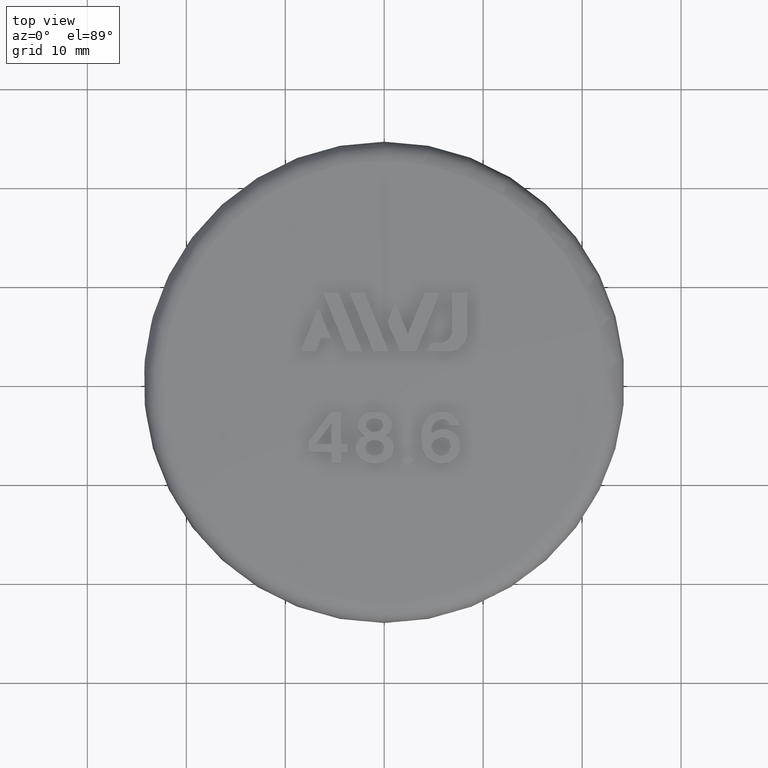
[diagram: clean part render]
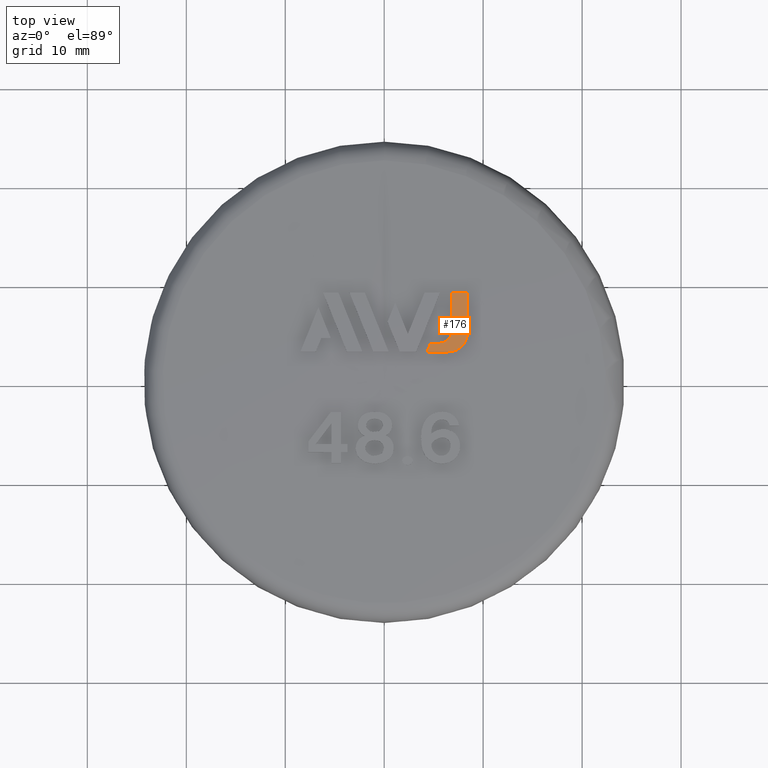
[diagram: same view with one face highlighted and labeled with its STEP entity id]
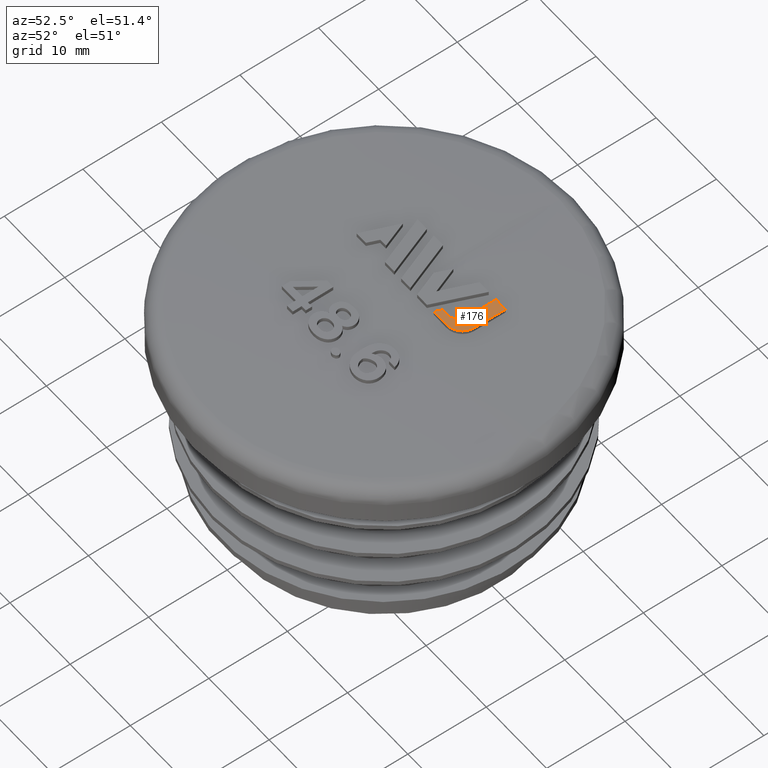
[diagram: same view with one face highlighted and labeled with its STEP entity id]
A machine part, top view. The second image highlights one B-rep face of the part: STEP entity #176.
A second angle (auxiliary view) of the same face is appended — the face is thin or edge-on in the first view.
In plain terms, the highlighted face is a freeform B-spline surface patch.
Its self-contained STEP definition (entity closure, byte-faithful):
#176 = ADVANCED_FACE( '', ( #431 ), #432, .T. );
#431 = FACE_OUTER_BOUND( '', #1050, .T. );
#432 = ( B_SPLINE_SURFACE( 3, 3, ( ( #1052, #1053, #1054, #1055 ), ( #1056, #1057, #1058, #1059 ), ( #1060, #1061, #1062, #1063 ), ( #1064, #1065, #1066, #1067 ) ), .UNSPECIFIED., .F., .F., .F. )B_SPLINE_SURFACE_WITH_KNOTS( ( 4, 4 ), ( 4, 4 ), ( 1.97843292187817, 2.49331854874179 ), ( 1.54983829835444, 1.56283366272915 ), .UNSPECIFIED. )RATIONAL_B_SPLINE_SURFACE( ( ( 1.00000000000000, 0.978029480429201, 0.978029480429201, 1.00000000000000 ), ( 0.999985926758245, 0.978015716383880, 0.978015716383880, 0.999985926758245 ), ( 0.999985926758245, 0.978015716383880, 0.978015716383880, 0.999985926758245 ), ( 1.00000000000000, 0.978029480429201, 0.978029480429201, 1.00000000000000 ) ) )BOUNDED_SURFACE(  )REPRESENTATION_ITEM( '' )GEOMETRIC_REPRESENTATION_ITEM(  )SURFACE(  ) );
#1050 = EDGE_LOOP( '', ( #2065, #2066, #2067, #2068, #2069, #2070, #2071, #2072 ) );
#1052 = CARTESIAN_POINT( '', ( 4.79382188161657, 2.07008839726422, 27.4831869739101 ) );
#1053 = CARTESIAN_POINT( '', ( 4.43455387754290, 2.90206582468672, 27.4831869739101 ) );
#1054 = CARTESIAN_POINT( '', ( 3.87529732687413, 3.61515210910518, 27.4831869739101 ) );
#1055 = CARTESIAN_POINT( '', ( 3.15291370058495, 4.16234662201713, 27.4831869739101 ) );
#1056 = CARTESIAN_POINT( '', ( 6.98301987771065, 3.01543711545652, 27.4641988791607 ) );
#1057 = CARTESIAN_POINT( '', ( 6.45968470259858, 4.22735425734640, 27.4641988791607 ) );
#1058 = CARTESIAN_POINT( '', ( 5.64503207125322, 5.26608615468960, 27.4641988791607 ) );
#1059 = CARTESIAN_POINT( '', ( 4.59275700841569, 6.06316836904793, 27.4641988791607 ) );
#1060 = CARTESIAN_POINT( '', ( 9.17205839192923, 3.96071696551225, 27.4297169827698 ) );
#1061 = CARTESIAN_POINT( '', ( 8.48466799798236, 5.55254614346932, 27.4297169827698 ) );
#1062 = CARTESIAN_POINT( '', ( 7.41463789142506, 6.91689993063263, 27.4297169827698 ) );
#1063 = CARTESIAN_POINT( '', ( 6.03249542444971, 7.96385164225510, 27.4297169827698 ) );
#1064 = CARTESIAN_POINT( '', ( 11.3608450036676, 4.90588803797584, 27.3797427405535 ) );
#1065 = CARTESIAN_POINT( '', ( 10.5094182694558, 6.87758553381811, 27.3797427405535 ) );
#1066 = CARTESIAN_POINT( '', ( 9.18404007511808, 8.56752374003019, 27.3797427405535 ) );
#1067 = CARTESIAN_POINT( '', ( 7.47206816332665, 9.86431619531302, 27.3797427405535 ) );
#2065 = ORIENTED_EDGE( '', *, *, #2554, .T. );
#2066 = ORIENTED_EDGE( '', *, *, #2555, .T. );
#2067 = ORIENTED_EDGE( '', *, *, #2556, .T. );
#2068 = ORIENTED_EDGE( '', *, *, #2557, .T. );
#2069 = ORIENTED_EDGE( '', *, *, #2558, .T. );
#2070 = ORIENTED_EDGE( '', *, *, #2559, .T. );
#2071 = ORIENTED_EDGE( '', *, *, #2560, .T. );
#2072 = ORIENTED_EDGE( '', *, *, #2561, .T. );
#2554 = EDGE_CURVE( '', #3068, #3069, #3070, .T. );
#2555 = EDGE_CURVE( '', #3069, #3071, #3072, .T. );
#2556 = EDGE_CURVE( '', #3071, #3073, #3074, .T. );
#2557 = EDGE_CURVE( '', #3073, #3075, #3076, .T. );
#2558 = EDGE_CURVE( '', #3075, #3077, #3078, .T. );
#2559 = EDGE_CURVE( '', #3077, #3079, #3080, .T. );
#2560 = EDGE_CURVE( '', #3079, #3081, #3082, .T. );
#2561 = EDGE_CURVE( '', #3081, #3068, #3083, .T. );
#3068 = VERTEX_POINT( '', #4848 );
#3069 = VERTEX_POINT( '', #4849 );
#3070 = B_SPLINE_CURVE_WITH_KNOTS( '', 3, ( #4850, #4851, #4852, #4853, #4854, #4855 ), .UNSPECIFIED., .F., .F., ( 4, 2, 4 ), ( 3.49258389821311, 3.49300991663693, 3.49343593506075 ), .UNSPECIFIED. );
#3071 = VERTEX_POINT( '', #4856 );
#3072 = B_SPLINE_CURVE_WITH_KNOTS( '', 3, ( #4857, #4858, #4859, #4860 ), .UNSPECIFIED., .F., .F., ( 4, 4 ), ( 2.15714471116177E-007, 0.000941060394919095 ), .UNSPECIFIED. );
#3073 = VERTEX_POINT( '', #4861 );
#3074 = B_SPLINE_CURVE_WITH_KNOTS( '', 3, ( #4862, #4863, #4864, #4865, #4866, #4867 ), .UNSPECIFIED., .F., .F., ( 4, 2, 4 ), ( 3.49194601648030, 3.49299860837714, 3.49405120027397 ), .UNSPECIFIED. );
#3075 = VERTEX_POINT( '', #4868 );
#3076 = B_SPLINE_CURVE_WITH_KNOTS( '', 3, ( #4869, #4870, #4871, #4872, #4873, #4874, #4875, #4876, #4877, #4878, #4879, #4880, #4881, #4882 ), .UNSPECIFIED., .F., .F., ( 4, 2, 2, 2, 2, 2, 4 ), ( 1.97173258368549E-007, 0.000390960802410759, 0.000781724431563150, 0.00117248806071554, 0.00156325168986793, 0.00234477894817271, 0.00312630620647749 ), .UNSPECIFIED. );
#3077 = VERTEX_POINT( '', #4883 );
#3078 = B_SPLINE_CURVE_WITH_KNOTS( '', 3, ( #4884, #4885, #4886, #4887, #4888, #4889 ), .UNSPECIFIED., .F., .F., ( 4, 2, 4 ), ( 3.49216031947603, 3.49415923642233, 3.49615815336863 ), .UNSPECIFIED. );
#3079 = VERTEX_POINT( '', #4890 );
#3080 = B_SPLINE_CURVE_WITH_KNOTS( '', 3, ( #4891, #4892, #4893, #4894, #4895, #4896 ), .UNSPECIFIED., .F., .F., ( 4, 2, 4 ), ( 3.49337870242567, 3.49416257781059, 3.49494645319552 ), .UNSPECIFIED. );
#3081 = VERTEX_POINT( '', #4897 );
#3082 = B_SPLINE_CURVE_WITH_KNOTS( '', 3, ( #4898, #4899, #4900, #4901, #4902, #4903 ), .UNSPECIFIED., .F., .F., ( 4, 2, 4 ), ( 3.49059079785099, 3.49248693428383, 3.49438307071666 ), .UNSPECIFIED. );
#3083 = B_SPLINE_CURVE_WITH_KNOTS( '', 3, ( #4904, #4905, #4906, #4907, #4908, #4909, #4910, #4911, #4912, #4913, #4914, #4915 ), .UNSPECIFIED., .F., .F., ( 4, 2, 2, 2, 2, 4 ), ( 1.97170833686449E-007, 0.000521210548902314, 0.000781717237936628, 0.00104222392697094, 0.00156323730503957, 0.00208425068310820 ), .UNSPECIFIED. );
#4848 = CARTESIAN_POINT( '', ( 5.52796600000001, 3.87536299999998, 27.4688841145142 ) );
#4849 = CARTESIAN_POINT( '', ( 4.67590900000001, 3.87536299999999, 27.4757488041123 ) );
#4850 = CARTESIAN_POINT( '', ( 5.52796599999983, 3.87536299999999, 27.4688841145144 ) );
#4851 = CARTESIAN_POINT( '', ( 5.38595341647397, 3.87536299999999, 27.4701331631462 ) );
#4852 = CARTESIAN_POINT( '', ( 5.24392313956765, 3.87536299999999, 27.4713296394041 ) );
#4853 = CARTESIAN_POINT( '', ( 4.95991629669855, 3.87536299999999, 27.4736174829096 ) );
#4854 = CARTESIAN_POINT( '', ( 4.81791272354428, 3.87536299999999, 27.4747090777843 ) );
#4855 = CARTESIAN_POINT( '', ( 4.67590900000001, 3.87536299999999, 27.4757488041123 ) );
#4856 = CARTESIAN_POINT( '', ( 4.32347200000000, 3.00305199999999, 27.4828476094519 ) );
#4857 = CARTESIAN_POINT( '', ( 4.67590900000001, 3.87536299999999, 27.4757488041123 ) );
#4858 = CARTESIAN_POINT( '', ( 4.55843077010655, 3.58459457274467, 27.4783734234575 ) );
#4859 = CARTESIAN_POINT( '', ( 4.44095168664642, 3.29382403284054, 27.4807382120564 ) );
#4860 = CARTESIAN_POINT( '', ( 4.32347200000000, 3.00305199999999, 27.4828476094520 ) );
#4861 = CARTESIAN_POINT( '', ( 6.42864599999998, 3.00305199999999, 27.4650768630313 ) );
#4862 = CARTESIAN_POINT( '', ( 4.32347200000022, 3.00305199999999, 27.4828476094519 ) );
#4863 = CARTESIAN_POINT( '', ( 4.67434567337909, 3.00305199999999, 27.4805306988798 ) );
#4864 = CARTESIAN_POINT( '', ( 5.02521807590428, 3.00305199999999, 27.4778953756774 ) );
#4865 = CARTESIAN_POINT( '', ( 5.72696028740748, 3.00305199999999, 27.4719749157672 ) );
#4866 = CARTESIAN_POINT( '', ( 6.07779831439691, 3.00305199999999, 27.4686901859206 ) );
#4867 = CARTESIAN_POINT( '', ( 6.42864599999998, 3.00305199999999, 27.4650768630314 ) );
#4868 = CARTESIAN_POINT( '', ( 8.42964600000003, 5.00405199999997, 27.4276396997580 ) );
#4869 = CARTESIAN_POINT( '', ( 6.42864600000000, 3.00305199999992, 27.4650768630314 ) );
#4870 = CARTESIAN_POINT( '', ( 6.56076679127661, 3.00305199999992, 27.4637161726268 ) );
#4871 = CARTESIAN_POINT( '', ( 6.69068116967093, 3.01600891916272, 27.4622696993789 ) );
#4872 = CARTESIAN_POINT( '', ( 6.94627755162964, 3.06677677480175, 27.4592101345038 ) );
#4873 = CARTESIAN_POINT( '', ( 7.07328139291743, 3.10520253586424, 27.4575782529281 ) );
#4874 = CARTESIAN_POINT( '', ( 7.31549390911389, 3.20552903285425, 27.4542366327140 ) );
#4875 = CARTESIAN_POINT( '', ( 7.43037657322263, 3.26692344805483, 27.4525345478717 ) );
#4876 = CARTESIAN_POINT( '', ( 7.64780790947823, 3.41197034826557, 27.4490688112470 ) );
#4877 = CARTESIAN_POINT( '', ( 7.75076854909608, 3.49640015855811, 27.4472943520264 ) );
#4878 = CARTESIAN_POINT( '', ( 8.02762668138709, 3.77305800331443, 27.4421045578814 ) );
#4879 = CARTESIAN_POINT( '', ( 8.17674320671135, 3.99607703226284, 27.4386854720087 ) );
#4880 = CARTESIAN_POINT( '', ( 8.37654539354392, 4.47722628657295, 27.4325825233146 ) );
#4881 = CARTESIAN_POINT( '', ( 8.42964600000150, 4.73980391474230, 27.4298366062357 ) );
#4882 = CARTESIAN_POINT( '', ( 8.42964600000152, 5.00405199999980, 27.4276396997579 ) );
#4883 = CARTESIAN_POINT( '', ( 8.42964600000001, 9.00165999999999, 27.3806299706016 ) );
#4884 = CARTESIAN_POINT( '', ( 8.42964600000001, 5.00405200000004, 27.4276396997580 ) );
#4885 = CARTESIAN_POINT( '', ( 8.42964600000001, 5.67032856445541, 27.4221004077740 ) );
#4886 = CARTESIAN_POINT( '', ( 8.42964600000001, 6.33659853504376, 27.4154274408654 ) );
#4887 = CARTESIAN_POINT( '', ( 8.42964600000001, 7.66912503440116, 27.3997704726509 ) );
#4888 = CARTESIAN_POINT( '', ( 8.42964600000001, 8.33541892113521, 27.3907858935072 ) );
#4889 = CARTESIAN_POINT( '', ( 8.42964600000001, 9.00165999999999, 27.3806299706015 ) );
#4890 = CARTESIAN_POINT( '', ( 6.86196600000000, 9.00165999999999, 27.4008638235729 ) );
#4891 = CARTESIAN_POINT( '', ( 8.42964600000004, 9.00165999999999, 27.3806299706015 ) );
#4892 = CARTESIAN_POINT( '', ( 8.16837881409364, 9.00166000000000, 27.3843595476875 ) );
#4893 = CARTESIAN_POINT( '', ( 7.90709982079702, 9.00165999999999, 27.3879099435039 ) );
#4894 = CARTESIAN_POINT( '', ( 7.38453369005013, 9.00165999999999, 27.3946539843837 ) );
#4895 = CARTESIAN_POINT( '', ( 7.12325010388647, 9.00165999999999, 27.3978475872731 ) );
#4896 = CARTESIAN_POINT( '', ( 6.86196600000000, 9.00165999999999, 27.4008638235728 ) );
#4897 = CARTESIAN_POINT( '', ( 6.86196600000000, 5.20936299999994, 27.4457019010080 ) );
#4898 = CARTESIAN_POINT( '', ( 6.86196600000000, 9.00166000000019, 27.4008638235728 ) );
#4899 = CARTESIAN_POINT( '', ( 6.86196600000000, 8.36964796173668, 27.4104347012911 ) );
#4900 = CARTESIAN_POINT( '', ( 6.86196600000000, 7.73746576740039, 27.4189480540207 ) );
#4901 = CARTESIAN_POINT( '', ( 6.86196600000000, 6.47341991553919, 27.4338808365210 ) );
#4902 = CARTESIAN_POINT( '', ( 6.86196600000000, 5.84139327483953, 27.4403024292805 ) );
#4903 = CARTESIAN_POINT( '', ( 6.86196600000000, 5.20936299999994, 27.4457019010080 ) );
#4904 = CARTESIAN_POINT( '', ( 6.86196599999997, 5.20936299999995, 27.4457019010081 ) );
#4905 = CARTESIAN_POINT( '', ( 6.86196599999997, 5.03320214845704, 27.4472068535005 ) );
#4906 = CARTESIAN_POINT( '', ( 6.82730688959971, 4.86034005287122, 27.4489948432882 ) );
#4907 = CARTESIAN_POINT( '', ( 6.72697958174902, 4.61812753757114, 27.4519586629037 ) );
#4908 = CARTESIAN_POINT( '', ( 6.68604951886468, 4.54153869825449, 27.4529773813525 ) );
#4909 = CARTESIAN_POINT( '', ( 6.58934983855310, 4.39658315162396, 27.4550748744467 ) );
#4910 = CARTESIAN_POINT( '', ( 6.53306282527562, 4.32794295542736, 27.4561605508974 ) );
#4911 = CARTESIAN_POINT( '', ( 6.34862352997895, 4.14337195355395, 27.4593702957535 ) );
#4912 = CARTESIAN_POINT( '', ( 6.19994332003960, 4.04396155337943, 27.4615318552216 ) );
#4913 = CARTESIAN_POINT( '', ( 5.87917838018467, 3.91076224748291, 27.4654941194504 ) );
#4914 = CARTESIAN_POINT( '', ( 5.70412796574956, 3.87536299999778, 27.4673347105331 ) );
#4915 = CARTESIAN_POINT( '', ( 5.52796600000026, 3.87536299999774, 27.4688841145143 ) );